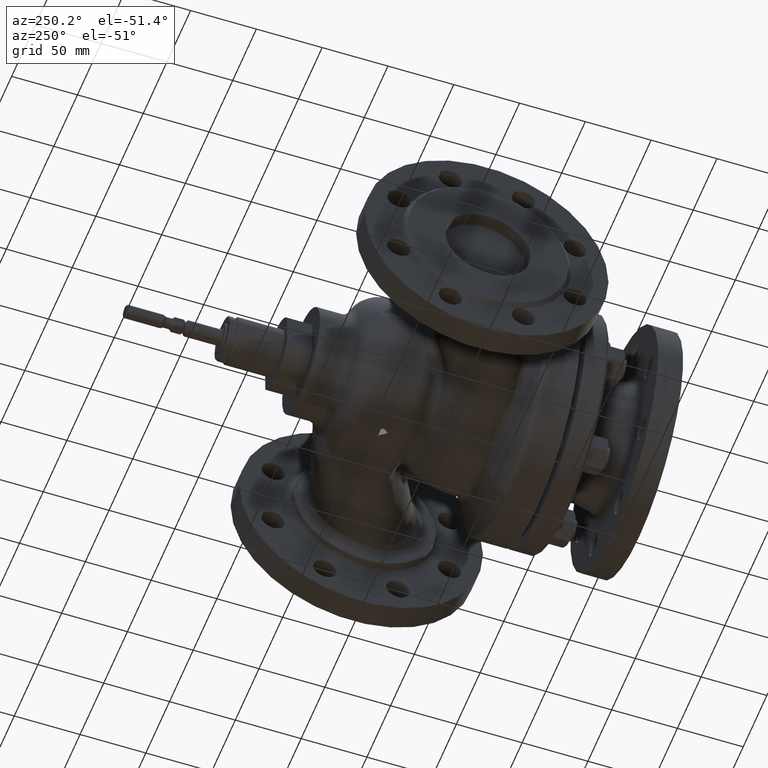
[diagram: clean part render]
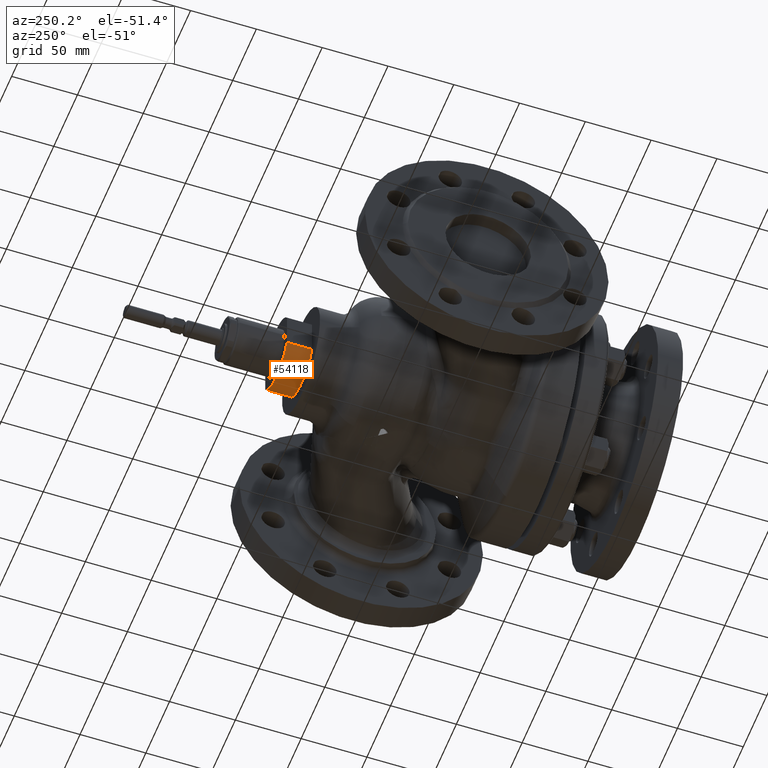
[diagram: same view with one face highlighted and labeled with its STEP entity id]
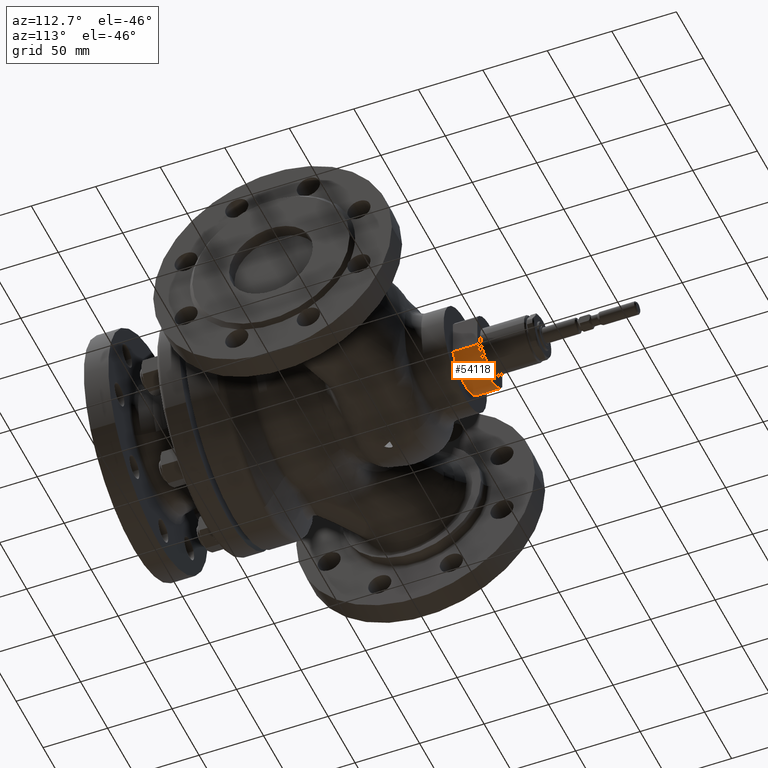
[diagram: same view with one face highlighted and labeled with its STEP entity id]
A machine part, auxiliary view. The second image highlights one B-rep face of the part: STEP entity #54118.
A second angle (auxiliary view) of the same face is appended — the face is thin or edge-on in the first view.
In plain terms, the highlighted cylindrical surface (partial cylindrical patch) has radius 27 mm, axis along (-0, 1, -0).
Its self-contained STEP definition (entity closure, byte-faithful):
#8158 = CARTESIAN_POINT ( 'NONE',  ( 23.00000000000000400, 109.0000000000000100, -14.14213562373095600 ) ) ;
#24153 = FACE_OUTER_BOUND ( 'NONE', #63220, .T. ) ;
#30469 = DIRECTION ( 'NONE',  ( -1.000000000000000000, 0.0000000000000000000, 0.0000000000000000000 ) ) ;
#32521 = VECTOR ( 'NONE', #113228, 1000.000000000000000 ) ;
#38256 = CARTESIAN_POINT ( 'NONE',  ( 4.450180671988040700E-015, 90.00000000000000000, 0.0000000000000000000 ) ) ;
#38282 = DIRECTION ( 'NONE',  ( -1.437057902876168500E-016, 1.000000000000000000, -0.0000000000000000000 ) ) ;
#50266 = AXIS2_PLACEMENT_3D ( 'NONE', #122101, #38282, #136173 ) ;
#52356 = DIRECTION ( 'NONE',  ( -1.000000000000000000, 0.0000000000000000000, 0.0000000000000000000 ) ) ;
#54118 = ADVANCED_FACE ( 'NONE', ( #24153 ), #164200, .T. ) ;
#56236 = CIRCLE ( 'NONE', #50266, 27.00000000000000400 ) ;
#56450 = DIRECTION ( 'NONE',  ( -1.437057902876168500E-016, 1.000000000000000000, -0.0000000000000000000 ) ) ;
#63220 = EDGE_LOOP ( 'NONE', ( #83917, #151631, #168270, #69697 ) ) ;
#69697 = ORIENTED_EDGE ( 'NONE', *, *, #144464, .T. ) ;
#70511 = CARTESIAN_POINT ( 'NONE',  ( 23.00000000000000000, 120.9673024523321200, -14.14213562373095800 ) ) ;
#83917 = ORIENTED_EDGE ( 'NONE', *, *, #141221, .F. ) ;
#85086 = CARTESIAN_POINT ( 'NONE',  ( -23.00000000000000000, 120.9673024523321200, -14.14213562373095800 ) ) ;
#87103 = CIRCLE ( 'NONE', #129827, 27.00000000000000000 ) ;
#87458 = CARTESIAN_POINT ( 'NONE',  ( -23.00000000000000000, 90.00000000000000000, -14.14213562373094200 ) ) ;
#106638 = VECTOR ( 'NONE', #56450, 1000.000000000000000 ) ;
#113228 = DIRECTION ( 'NONE',  ( 1.437057902876168500E-016, -1.000000000000000000, 0.0000000000000000000 ) ) ;
#114728 = AXIS2_PLACEMENT_3D ( 'NONE', #128358, #170578, #30469 ) ;
#119510 = VERTEX_POINT ( 'NONE', #8158 ) ;
#122101 = CARTESIAN_POINT ( 'NONE',  ( 1.719770656523320800E-015, 109.0000000000000000, 0.0000000000000000000 ) ) ;
#123560 = VERTEX_POINT ( 'NONE', #87458 ) ;
#128358 = CARTESIAN_POINT ( 'NONE',  ( 0.0000000000000000000, 120.9673024523321200, 0.0000000000000000000 ) ) ;
#129827 = AXIS2_PLACEMENT_3D ( 'NONE', #38256, #136144, #52356 ) ;
#136144 = DIRECTION ( 'NONE',  ( -1.437057902876168500E-016, 1.000000000000000000, -0.0000000000000000000 ) ) ;
#136173 = DIRECTION ( 'NONE',  ( -1.000000000000000000, 0.0000000000000000000, 0.0000000000000000000 ) ) ;
#137118 = CARTESIAN_POINT ( 'NONE',  ( -22.99999999999999600, 109.0000000000000000, -14.14213562373095600 ) ) ;
#139469 = LINE ( 'NONE', #70511, #106638 ) ;
#141221 = EDGE_CURVE ( 'NONE', #149805, #123560, #177030, .T. ) ;
#141469 = VERTEX_POINT ( 'NONE', #156618 ) ;
#144464 = EDGE_CURVE ( 'NONE', #141469, #123560, #87103, .T. ) ;
#149805 = VERTEX_POINT ( 'NONE', #137118 ) ;
#151631 = ORIENTED_EDGE ( 'NONE', *, *, #152226, .F. ) ;
#152226 = EDGE_CURVE ( 'NONE', #119510, #149805, #56236, .T. ) ;
#156618 = CARTESIAN_POINT ( 'NONE',  ( 23.00000000000000700, 90.00000000000001400, -14.14213562373094200 ) ) ;
#157823 = EDGE_CURVE ( 'NONE', #141469, #119510, #139469, .T. ) ;
#164200 = CYLINDRICAL_SURFACE ( 'NONE', #114728, 27.00000000000000400 ) ;
#168270 = ORIENTED_EDGE ( 'NONE', *, *, #157823, .F. ) ;
#170578 = DIRECTION ( 'NONE',  ( -1.437057902876168500E-016, 1.000000000000000000, -0.0000000000000000000 ) ) ;
#177030 = LINE ( 'NONE', #85086, #32521 ) ;